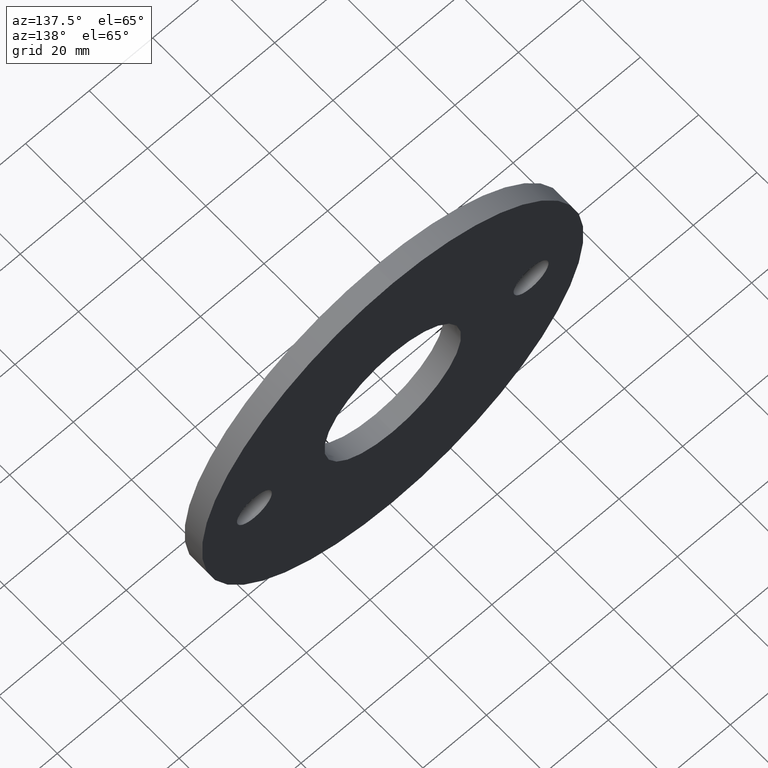
[diagram: clean part render]
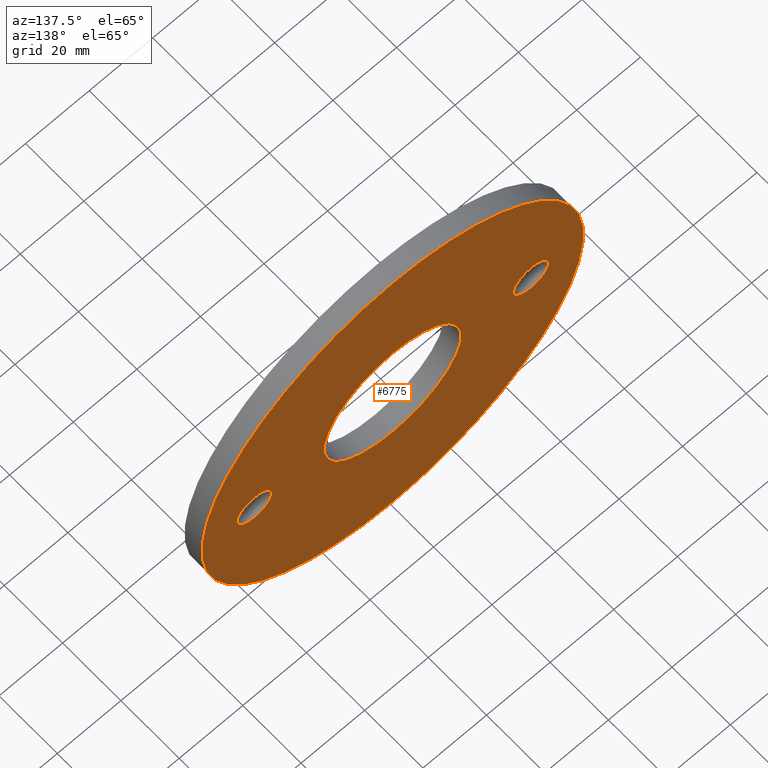
[diagram: same view with one face highlighted and labeled with its STEP entity id]
A machine part, auxiliary view. The second image highlights one B-rep face of the part: STEP entity #6775.
In plain terms, the highlighted planar face has unit normal (0, 1, 0).
Its self-contained STEP definition (entity closure, byte-faithful):
#99 = ORIENTED_EDGE ( 'NONE', *, *, #7951, .F. ) ;
#156 = DIRECTION ( 'NONE',  ( 0.0000000000000000000, 1.000000000000000000, 0.0000000000000000000 ) ) ;
#219 = DIRECTION ( 'NONE',  ( 0.0000000000000000000, 0.0000000000000000000, 1.000000000000000000 ) ) ;
#407 = DIRECTION ( 'NONE',  ( 0.0000000000000000000, 1.000000000000000000, 0.0000000000000000000 ) ) ;
#569 = CARTESIAN_POINT ( 'NONE',  ( 2.632990618166809200E-015, 6.000000000000000000, -21.50000000000000000 ) ) ;
#598 = CARTESIAN_POINT ( 'NONE',  ( 0.0000000000000000000, 6.000000000000000000, 0.0000000000000000000 ) ) ;
#795 = CIRCLE ( 'NONE', #10370, 21.50000000000000000 ) ;
#917 = CIRCLE ( 'NONE', #5253, 60.00000000000000000 ) ;
#956 = DIRECTION ( 'NONE',  ( 0.0000000000000000000, 1.000000000000000000, 0.0000000000000000000 ) ) ;
#1123 = DIRECTION ( 'NONE',  ( 0.0000000000000000000, 0.0000000000000000000, 1.000000000000000000 ) ) ;
#1290 = DIRECTION ( 'NONE',  ( 0.0000000000000000000, 1.000000000000000000, 0.0000000000000000000 ) ) ;
#1456 = AXIS2_PLACEMENT_3D ( 'NONE', #3750, #1290, #7872 ) ;
#1603 = AXIS2_PLACEMENT_3D ( 'NONE', #2634, #156, #219 ) ;
#1696 = CIRCLE ( 'NONE', #9544, 5.499999999999996400 ) ;
#1950 = DIRECTION ( 'NONE',  ( 0.0000000000000000000, 0.0000000000000000000, 1.000000000000000000 ) ) ;
#2181 = VERTEX_POINT ( 'NONE', #5859 ) ;
#2273 = DIRECTION ( 'NONE',  ( 0.0000000000000000000, 1.000000000000000000, 0.0000000000000000000 ) ) ;
#2451 = CARTESIAN_POINT ( 'NONE',  ( 43.50000000000000000, 6.000000000000000000, 5.499999999999985800 ) ) ;
#2462 = ORIENTED_EDGE ( 'NONE', *, *, #10385, .F. ) ;
#2634 = CARTESIAN_POINT ( 'NONE',  ( 0.0000000000000000000, 6.000000000000000000, 0.0000000000000000000 ) ) ;
#2745 = EDGE_LOOP ( 'NONE', ( #9368, #99 ) ) ;
#2782 = FACE_OUTER_BOUND ( 'NONE', #6752, .T. ) ;
#2922 = EDGE_CURVE ( 'NONE', #3012, #2181, #1696, .T. ) ;
#3012 = VERTEX_POINT ( 'NONE', #7546 ) ;
#3633 = EDGE_LOOP ( 'NONE', ( #8294, #2462 ) ) ;
#3727 = EDGE_CURVE ( 'NONE', #10127, #6234, #795, .T. ) ;
#3750 = CARTESIAN_POINT ( 'NONE',  ( 43.50000000000000000, 6.000000000000000000, -1.065442715258197200E-014 ) ) ;
#3763 = VERTEX_POINT ( 'NONE', #5209 ) ;
#3792 = FACE_BOUND ( 'NONE', #4474, .T. ) ;
#4015 = CIRCLE ( 'NONE', #5614, 5.499999999999996400 ) ;
#4112 = DIRECTION ( 'NONE',  ( 0.0000000000000000000, 1.000000000000000000, 0.0000000000000000000 ) ) ;
#4182 = EDGE_CURVE ( 'NONE', #8619, #3763, #917, .T. ) ;
#4474 = EDGE_LOOP ( 'NONE', ( #7884, #6425 ) ) ;
#5108 = DIRECTION ( 'NONE',  ( 0.0000000000000000000, 0.0000000000000000000, 1.000000000000000000 ) ) ;
#5134 = CARTESIAN_POINT ( 'NONE',  ( 43.50000000000000000, 6.000000000000000000, -1.065442715258197200E-014 ) ) ;
#5209 = CARTESIAN_POINT ( 'NONE',  ( 0.0000000000000000000, 6.000000000000000000, -60.00000000000000000 ) ) ;
#5253 = AXIS2_PLACEMENT_3D ( 'NONE', #7291, #4112, #8010 ) ;
#5258 = DIRECTION ( 'NONE',  ( 0.0000000000000000000, 1.000000000000000000, 0.0000000000000000000 ) ) ;
#5274 = CARTESIAN_POINT ( 'NONE',  ( -43.50000000000000000, 6.000000000000000000, 0.0000000000000000000 ) ) ;
#5614 = AXIS2_PLACEMENT_3D ( 'NONE', #5134, #9204, #1123 ) ;
#5713 = FACE_BOUND ( 'NONE', #2745, .T. ) ;
#5859 = CARTESIAN_POINT ( 'NONE',  ( -43.50000000000000000, 6.000000000000000000, 5.499999999999996400 ) ) ;
#5919 = DIRECTION ( 'NONE',  ( 0.0000000000000000000, 1.000000000000000000, 0.0000000000000000000 ) ) ;
#6001 = CARTESIAN_POINT ( 'NONE',  ( 43.50000000000000000, 6.000000000000000000, -5.500000000000006200 ) ) ;
#6234 = VERTEX_POINT ( 'NONE', #569 ) ;
#6245 = CIRCLE ( 'NONE', #1456, 5.499999999999996400 ) ;
#6425 = ORIENTED_EDGE ( 'NONE', *, *, #2922, .F. ) ;
#6601 = CIRCLE ( 'NONE', #8977, 21.50000000000000000 ) ;
#6696 = CARTESIAN_POINT ( 'NONE',  ( -43.50000000000000000, 6.000000000000000000, 0.0000000000000000000 ) ) ;
#6720 = CARTESIAN_POINT ( 'NONE',  ( 0.0000000000000000000, 6.000000000000000000, 0.0000000000000000000 ) ) ;
#6752 = EDGE_LOOP ( 'NONE', ( #9902, #8223 ) ) ;
#6775 = ADVANCED_FACE ( 'NONE', ( #9926, #5713, #3792, #2782 ), #9364, .T. ) ;
#6788 = VERTEX_POINT ( 'NONE', #6001 ) ;
#6925 = CIRCLE ( 'NONE', #10322, 5.499999999999996400 ) ;
#7291 = CARTESIAN_POINT ( 'NONE',  ( 0.0000000000000000000, 6.000000000000000000, 0.0000000000000000000 ) ) ;
#7444 = CIRCLE ( 'NONE', #1603, 60.00000000000000000 ) ;
#7509 = CARTESIAN_POINT ( 'NONE',  ( 7.347880794884118400E-015, 6.000000000000000000, 60.00000000000000000 ) ) ;
#7546 = CARTESIAN_POINT ( 'NONE',  ( -43.50000000000000000, 6.000000000000000000, -5.499999999999996400 ) ) ;
#7595 = DIRECTION ( 'NONE',  ( 0.0000000000000000000, -0.0000000000000000000, 1.000000000000000000 ) ) ;
#7872 = DIRECTION ( 'NONE',  ( 0.0000000000000000000, 0.0000000000000000000, 1.000000000000000000 ) ) ;
#7884 = ORIENTED_EDGE ( 'NONE', *, *, #8725, .F. ) ;
#7951 = EDGE_CURVE ( 'NONE', #6788, #9560, #6245, .T. ) ;
#8010 = DIRECTION ( 'NONE',  ( 0.0000000000000000000, 0.0000000000000000000, 1.000000000000000000 ) ) ;
#8223 = ORIENTED_EDGE ( 'NONE', *, *, #4182, .T. ) ;
#8294 = ORIENTED_EDGE ( 'NONE', *, *, #3727, .F. ) ;
#8619 = VERTEX_POINT ( 'NONE', #7509 ) ;
#8725 = EDGE_CURVE ( 'NONE', #2181, #3012, #6925, .T. ) ;
#8728 = EDGE_CURVE ( 'NONE', #9560, #6788, #4015, .T. ) ;
#8742 = AXIS2_PLACEMENT_3D ( 'NONE', #9257, #5258, #7595 ) ;
#8749 = DIRECTION ( 'NONE',  ( 0.0000000000000000000, 0.0000000000000000000, 1.000000000000000000 ) ) ;
#8977 = AXIS2_PLACEMENT_3D ( 'NONE', #598, #2273, #8749 ) ;
#9151 = EDGE_CURVE ( 'NONE', #3763, #8619, #7444, .T. ) ;
#9204 = DIRECTION ( 'NONE',  ( 0.0000000000000000000, 1.000000000000000000, 0.0000000000000000000 ) ) ;
#9257 = CARTESIAN_POINT ( 'NONE',  ( 0.0000000000000000000, 6.000000000000000000, 0.0000000000000000000 ) ) ;
#9278 = DIRECTION ( 'NONE',  ( 0.0000000000000000000, 0.0000000000000000000, 1.000000000000000000 ) ) ;
#9364 = PLANE ( 'NONE',  #8742 ) ;
#9368 = ORIENTED_EDGE ( 'NONE', *, *, #8728, .F. ) ;
#9544 = AXIS2_PLACEMENT_3D ( 'NONE', #6696, #956, #5108 ) ;
#9560 = VERTEX_POINT ( 'NONE', #2451 ) ;
#9902 = ORIENTED_EDGE ( 'NONE', *, *, #9151, .T. ) ;
#9926 = FACE_BOUND ( 'NONE', #3633, .T. ) ;
#10127 = VERTEX_POINT ( 'NONE', #10330 ) ;
#10322 = AXIS2_PLACEMENT_3D ( 'NONE', #5274, #407, #9278 ) ;
#10330 = CARTESIAN_POINT ( 'NONE',  ( 0.0000000000000000000, 6.000000000000000000, 21.50000000000000000 ) ) ;
#10370 = AXIS2_PLACEMENT_3D ( 'NONE', #6720, #5919, #1950 ) ;
#10385 = EDGE_CURVE ( 'NONE', #6234, #10127, #6601, .T. ) ;